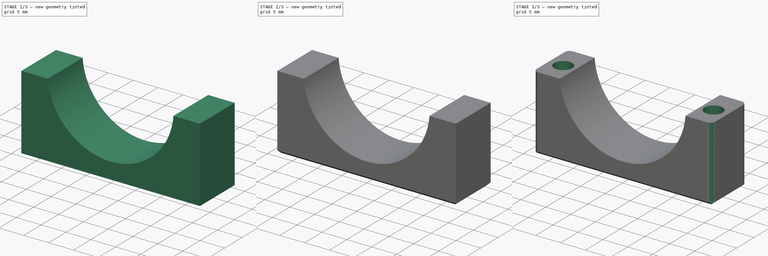
[diagram: build sequence overview — one tinted view per stage of 3, left to right]
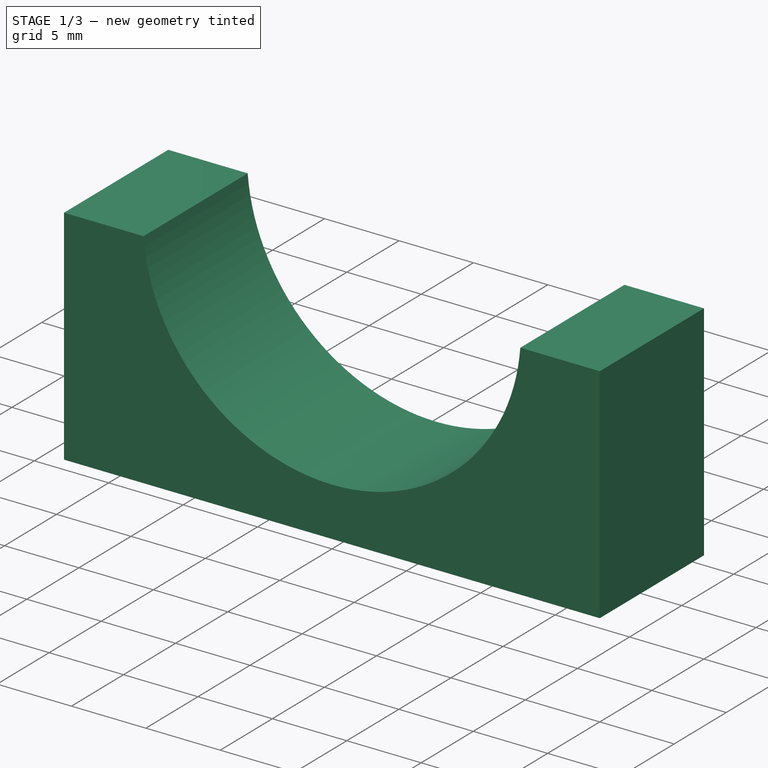
[diagram: stage 1 of 3 — iso view after this stage's code; geometry added in this stage tinted green]
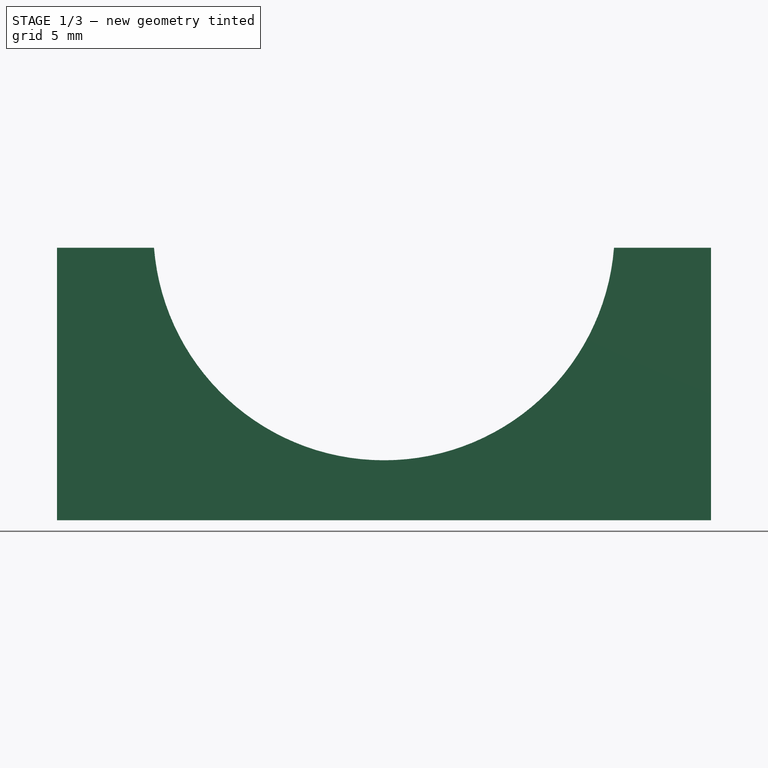
[diagram: stage 1 of 3 — front view after this stage's code; geometry added in this stage tinted green]
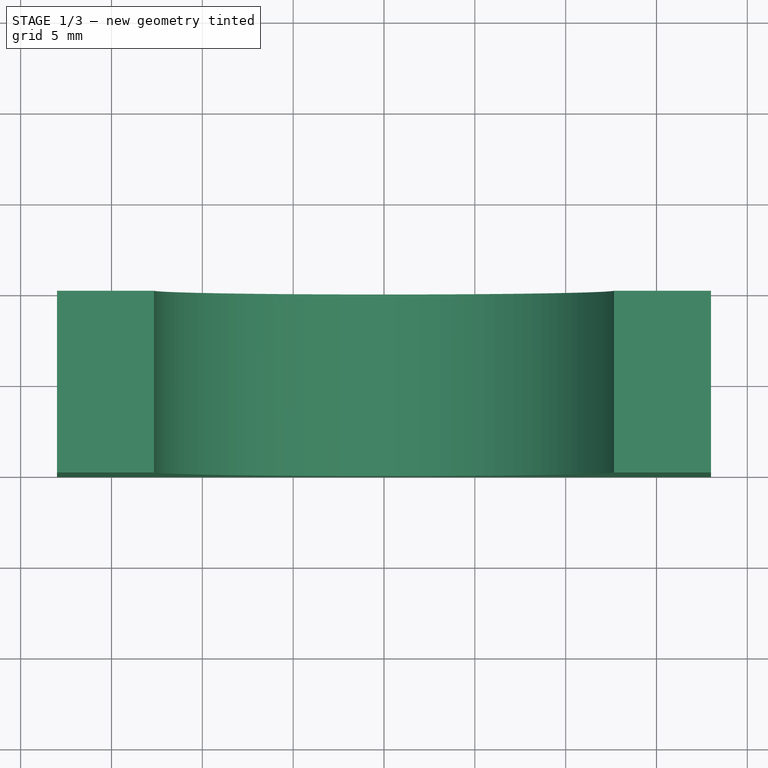
[diagram: stage 1 of 3 — top view after this stage's code; geometry added in this stage tinted green]
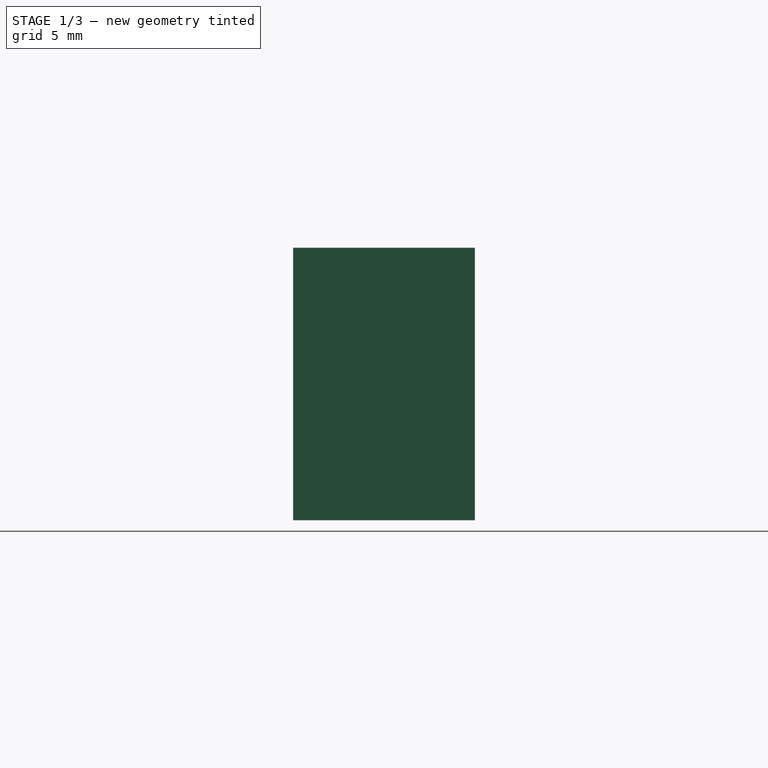
[diagram: stage 1 of 3 — right view after this stage's code; geometry added in this stage tinted green]
FCSTD DOCUMENT  (FreeCAD 0.16R)
Label: cap7
License: All rights reserved
LicenseURL: http://en.wikipedia.org/wiki/All_rights_reserved
objects: Sketcher::SketchObject×4, PartDesign::Pocket×2, PartDesign::Pad×1, PartDesign::Chamfer×1, PartDesign::Fillet×1
note: 12 computed .brp shape members not serialized (recipe doc carries the construction recipe); baked Part::Feature solids carry a one-line shape summary decoded from their .brp

FEATURE [Sketcher::SketchObject] Sketch
  sketch-geometry (4):
    g0: LineSegment StartX=-18 StartY=5 StartZ=0 EndX=18 EndY=5 EndZ=0
    g1: LineSegment StartX=18 StartY=5 StartZ=0 EndX=18 EndY=-5 EndZ=0
    g2: LineSegment StartX=18 StartY=-5 StartZ=0 EndX=-18 EndY=-5 EndZ=0
    g3: LineSegment StartX=-18 StartY=-5 StartZ=0 EndX=-18 EndY=5 EndZ=0
  constraints (11):
    c: Coincident(g0,g1)
    c: Coincident(g1,g2)
    c: Coincident(g2,g3)
    c: Coincident(g3,g0)
    c: Horizontal(g0)
    c: Horizontal(g2)
    c: Vertical(g1)
    c: Vertical(g3)
    c: Distance(g1) = 10
    c: Distance(g0) = 36
    c: Symmetric(g2,g0,g-1)
FEATURE [Sketcher::SketchObject] Sketch003
  Placement = pos=(0,0,-6) rot=(1,0,0;3.14159rad)
  sketch-geometry (7):
    g0: LineSegment StartX=-31.6449 StartY=0 StartZ=0 EndX=6 EndY=0 EndZ=0
    g1: LineSegment StartX=6 StartY=0 StartZ=0 EndX=8.92372 EndY=9.56305 EndZ=0
    g2: LineSegment StartX=8.92372 StartY=9.56305 StartZ=0 EndX=-25.5033 EndY=20.0884 EndZ=0
    g3: LineSegment StartX=-25.5033 StartY=20.0884 StartZ=0 EndX=-31.6449 EndY=0 EndZ=0
    g4: LineSegment [constr] StartX=0.884158 StartY=44.8323 StartZ=0 EndX=-19.2182 EndY=-20.9195 EndZ=0
    g5: LineSegment StartX=-31.6449 StartY=0 StartZ=0 EndX=6 EndY=0 EndZ=0
    g6: LineSegment StartX=-31.6449 StartY=0 StartZ=0 EndX=6 EndY=0 EndZ=0
  constraints (20):
    c: Horizontal(g0)
    c: Coincident(g0,g1)
    c: Coincident(g1,g2)
    c: Coincident(g2,g3)
    c: Coincident(g3,g0)
    c: Parallel(g1,g3)
    c: Perpendicular(g3,g2)
    c: Distance(g2) = 36
    c: Perpendicular(g4,g2)
    c: Symmetric(g1,g2,g4)
    c: Distance(g1) = 10
    c: Angle(g4) = -1.8675
    c: DistanceX(g0) = 6
    c: Distance(g4) = 68.7561
    c: DistanceY(g4) = 44.8323
    c: Coincident(g5,g0)
    c: PointOnObject(g5,g-1)
    c: Coincident(g6,g0)
    c: Coincident(g6,g5)
    c: Coincident(g5,g0)
FEATURE [PartDesign::Pad] Pad
  Length = 15
  Length2 = 100
  Sketch = -> Sketch
  Type = 0
FEATURE [Sketcher::SketchObject] Sketch004
  ExternalGeometry = -> [Pad]
  Placement = pos=(0,5,0) rot=(0,0.707107,0.707107;3.14159rad)
  Support = -> Pad [Face1]
  sketch-geometry (2):
    g0: LineSegment [constr] StartX=-25 StartY=16 StartZ=0 EndX=25 EndY=16 EndZ=0
    g1: Circle CenterX=0 CenterY=16 CenterZ=0 NormalX=0 NormalY=0 NormalZ=1 Radius=12.7
  constraints (7):
    c: Horizontal(g0)
    c: Distance(g-3,g0) = 1
    c: Symmetric(g0,g0,g-2)
    c: Distance(g0) = 50
    c: Radius(g1) = 12.7
    c: PointOnObject(g1,g0)
    c: PointOnObject(g1,g-2)
FEATURE [PartDesign::Pocket] Pocket
  Length = 5
  Sketch = -> Sketch004
  Type = 1
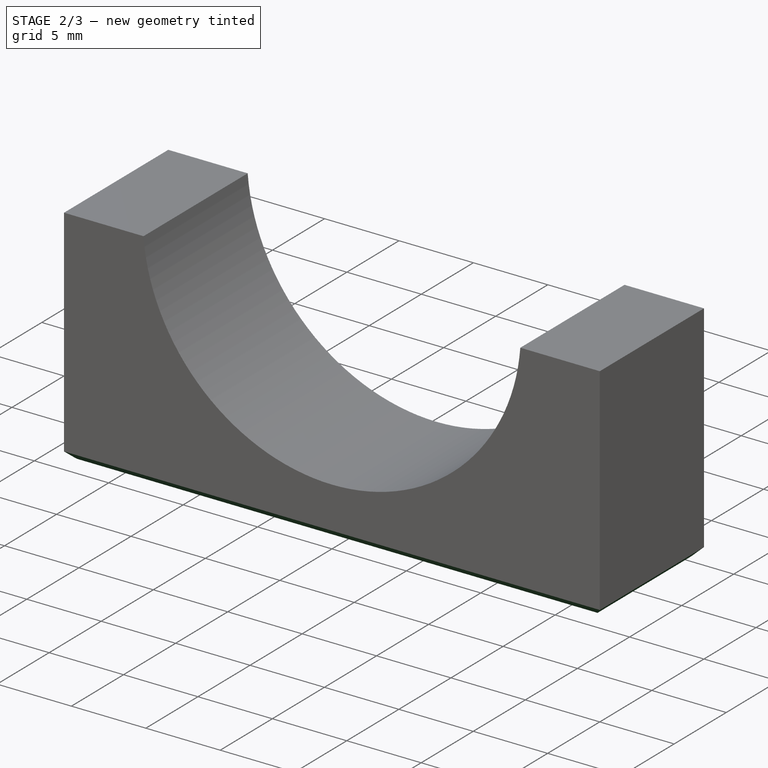
[diagram: stage 2 of 3 — iso view after this stage's code; geometry added in this stage tinted green]
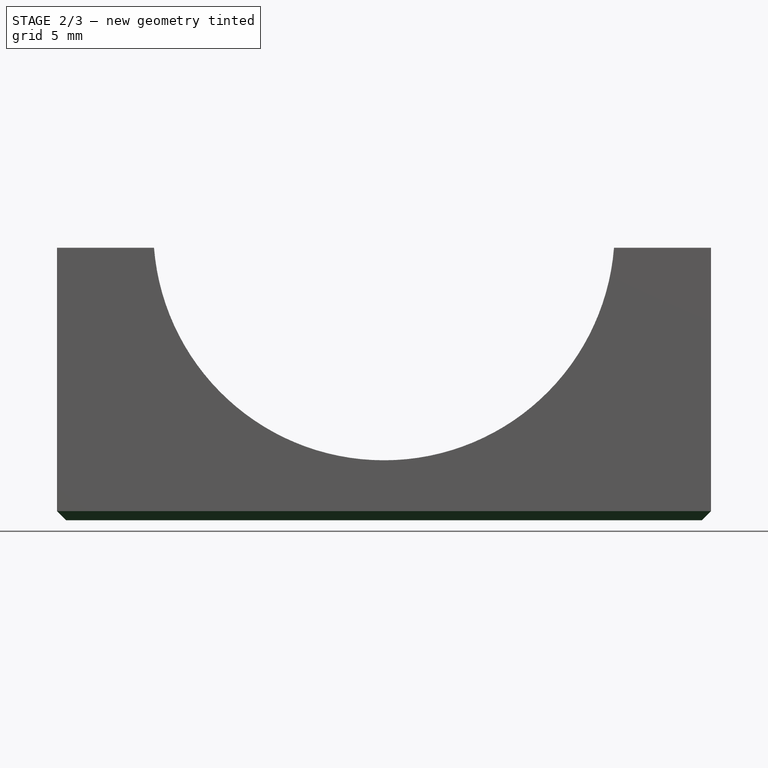
[diagram: stage 2 of 3 — front view after this stage's code; geometry added in this stage tinted green]
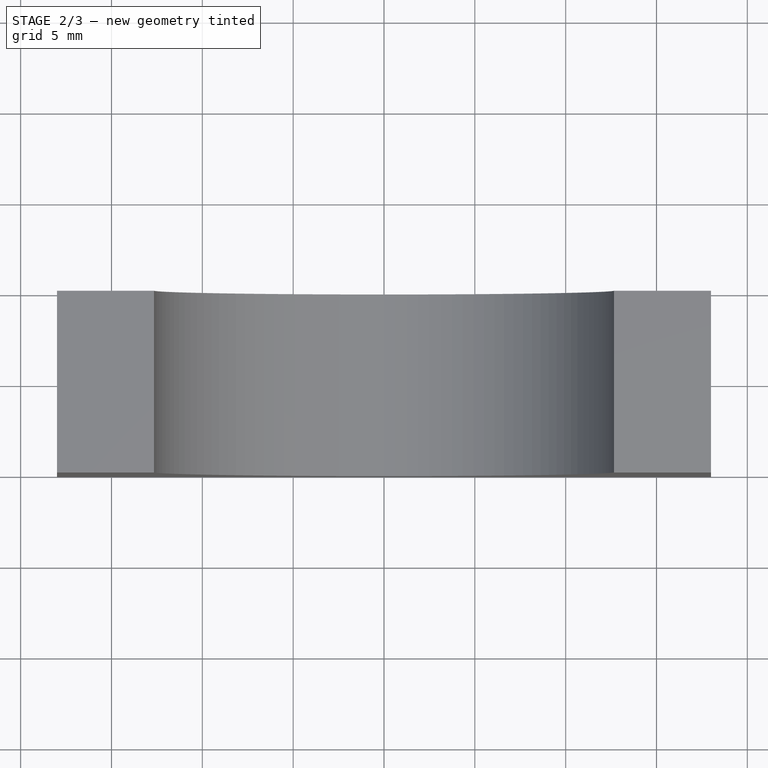
[diagram: stage 2 of 3 — top view after this stage's code; geometry added in this stage tinted green]
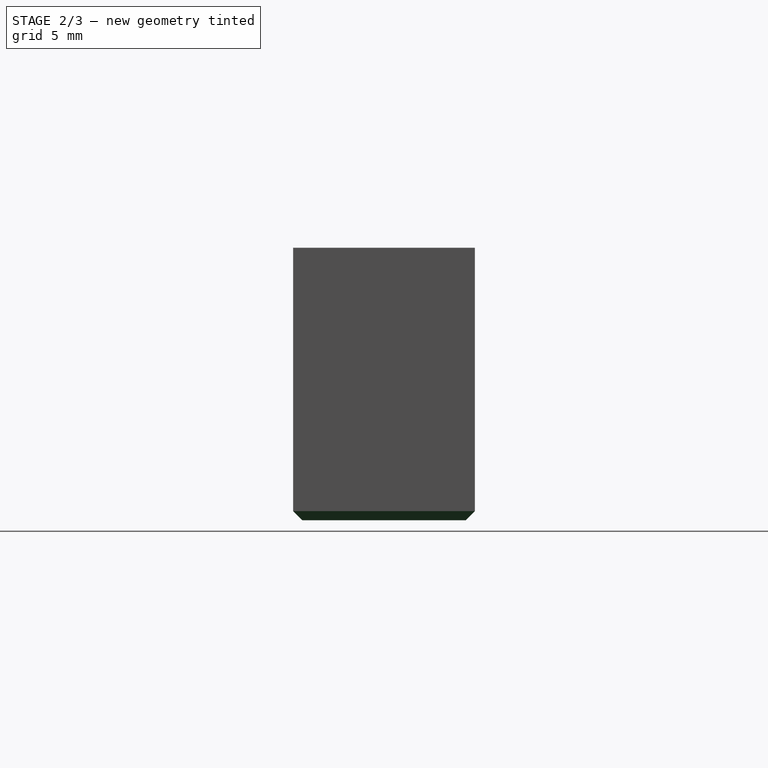
[diagram: stage 2 of 3 — right view after this stage's code; geometry added in this stage tinted green]
FEATURE [PartDesign::Chamfer] Chamfer
  Base = -> Pocket [Edge1,Edge7,Edge8,Edge9]
  Size = 0.5
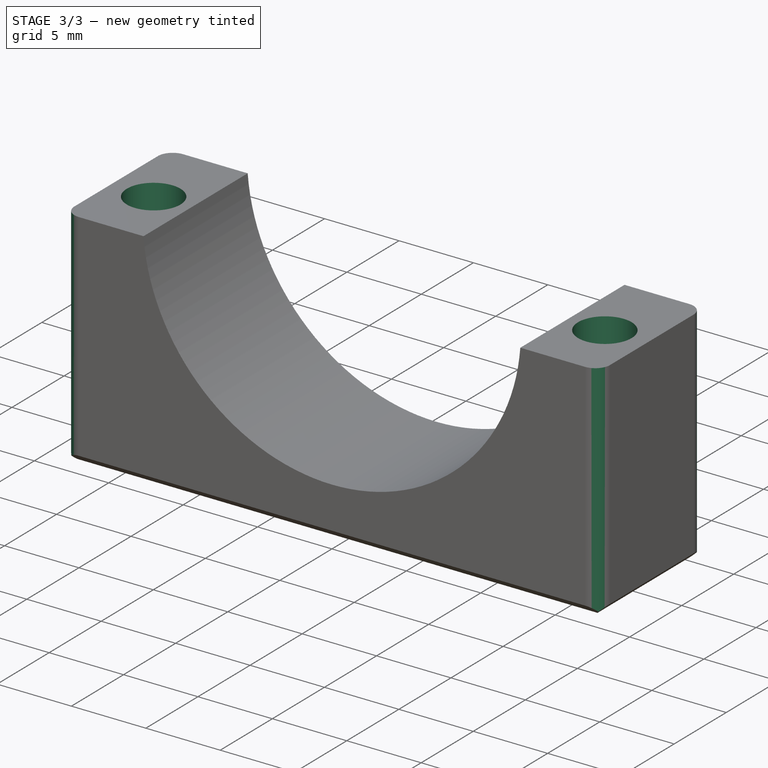
[diagram: stage 3 of 3 — iso view after this stage's code; geometry added in this stage tinted green]
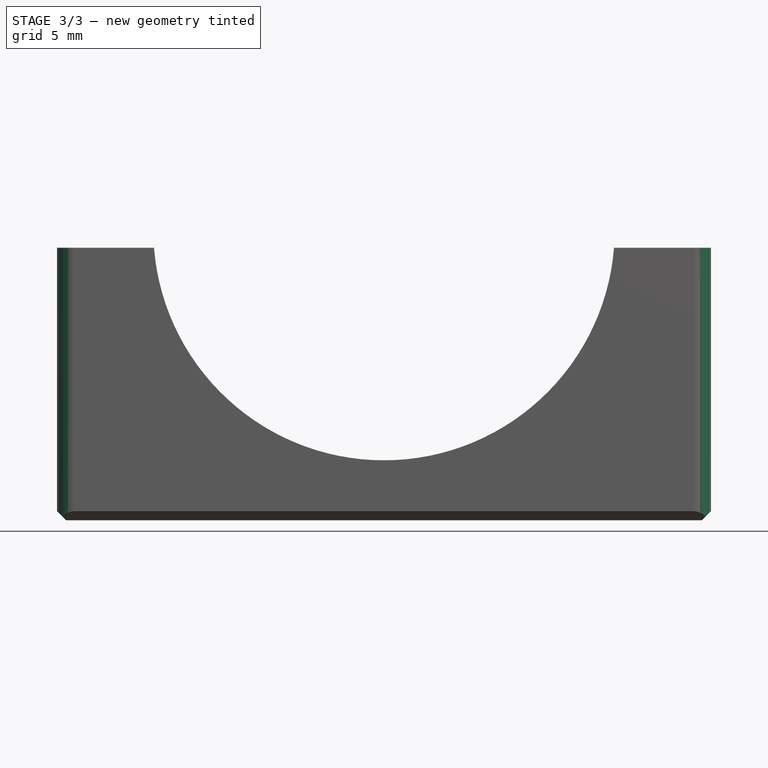
[diagram: stage 3 of 3 — front view after this stage's code; geometry added in this stage tinted green]
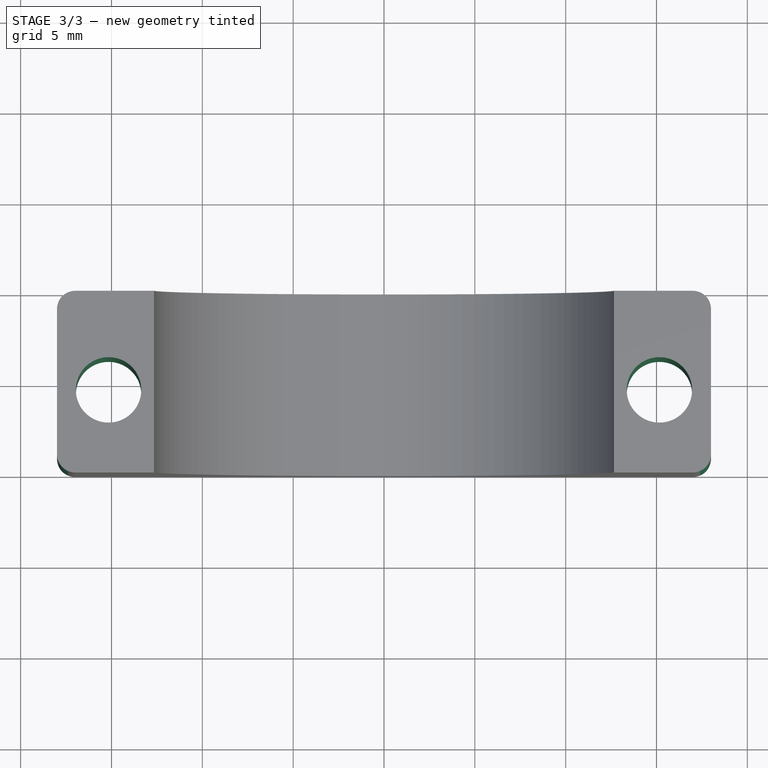
[diagram: stage 3 of 3 — top view after this stage's code; geometry added in this stage tinted green]
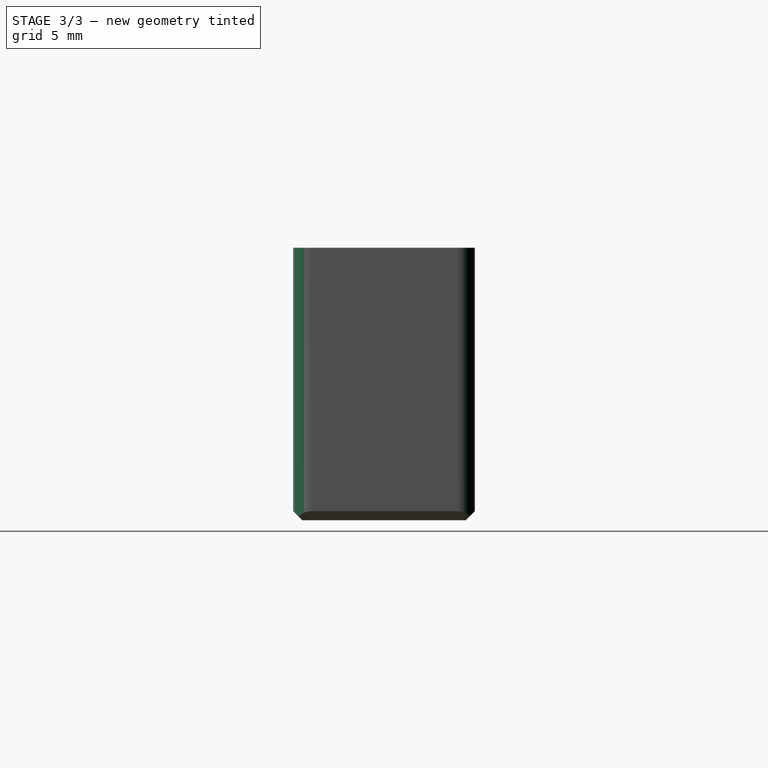
[diagram: stage 3 of 3 — right view after this stage's code; geometry added in this stage tinted green]
FEATURE [Sketcher::SketchObject] Sketch005
  ExternalGeometry = -> [Pocket]
  Placement = pos=(0,0,0) rot=(1,0,0;3.14159rad)
  Support = -> Chamfer [Face11]
  sketch-geometry (2):
    g0: Circle CenterX=15.1606 CenterY=0.454356 CenterZ=0 NormalX=0 NormalY=0 NormalZ=1 Radius=1.8
    g1: Circle CenterX=-15.1606 CenterY=0.454356 CenterZ=0 NormalX=0 NormalY=0 NormalZ=1 Radius=1.8
  constraints (6):
    c: Radius(g1) = 1.8
    c: Equal(g1,g0)
    c: Distance(g1,g-3) = 2.5
    c: Distance(g1,g-3) = 6
    c: Distance(g0,g-4) = 6
    c: Distance(g0,g-4) = 2.5
FEATURE [PartDesign::Pocket] Pocket001
  Length = 5
  Sketch = -> Sketch005
  Type = 1
FEATURE [PartDesign::Fillet] Fillet
  Base = -> Pocket001 [Edge16,Edge9,Edge1,Edge4]
  Radius = 1
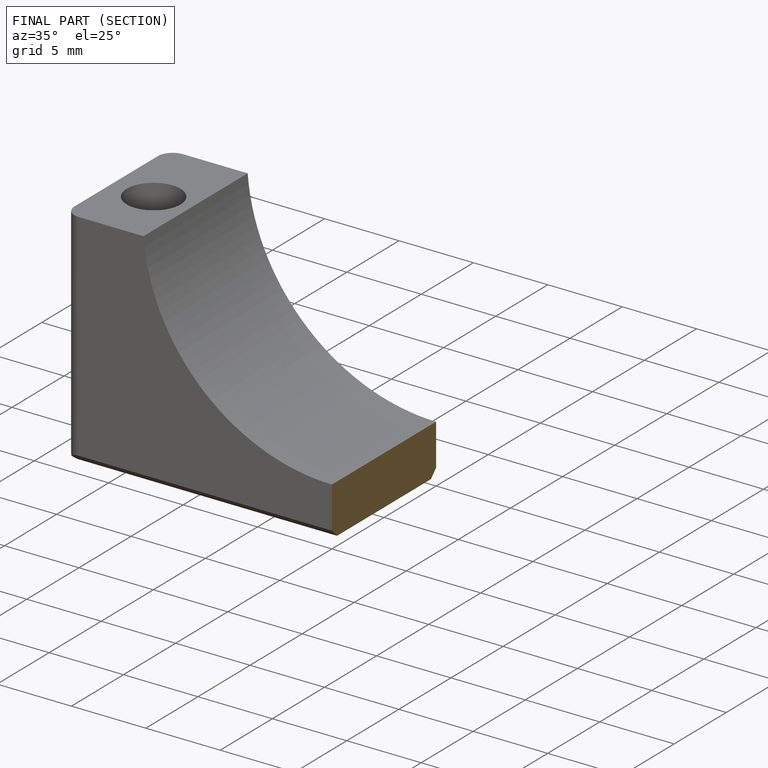
[diagram: finished part — half-section view (interior)]
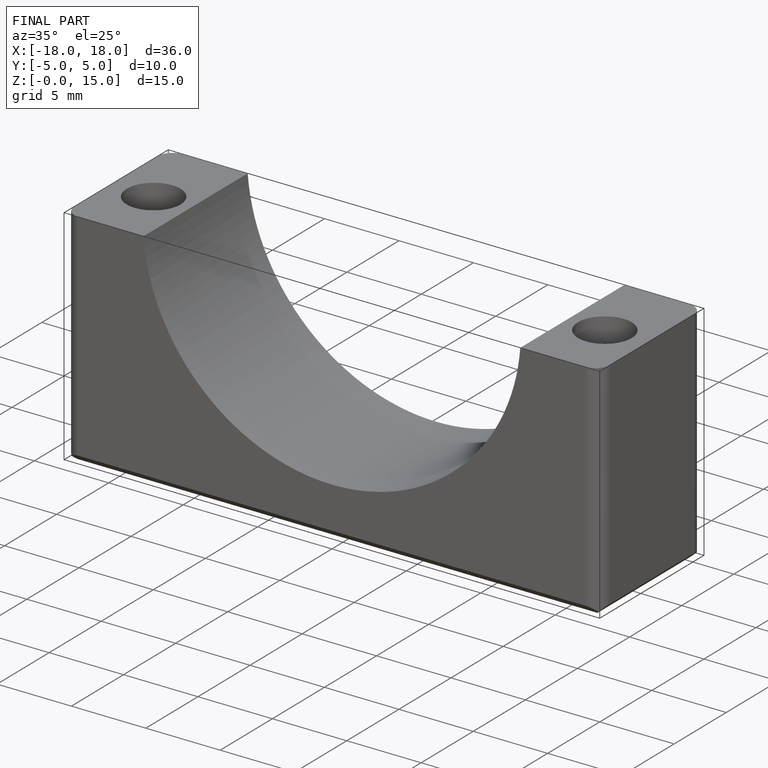
[diagram: finished part — iso view with bounding-box wireframe]
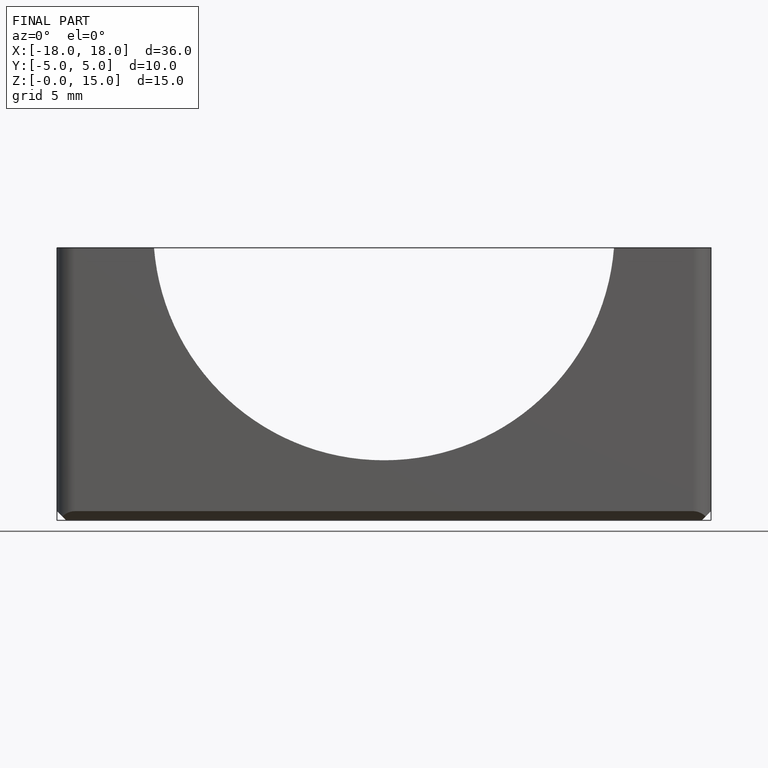
[diagram: finished part — front view with bounding-box wireframe]
